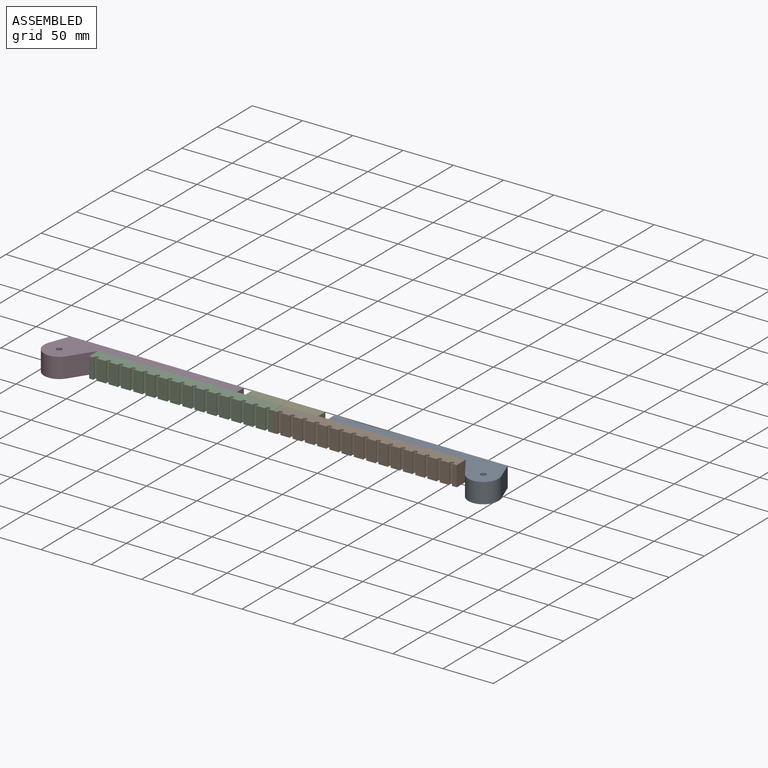
[diagram: assembled view]
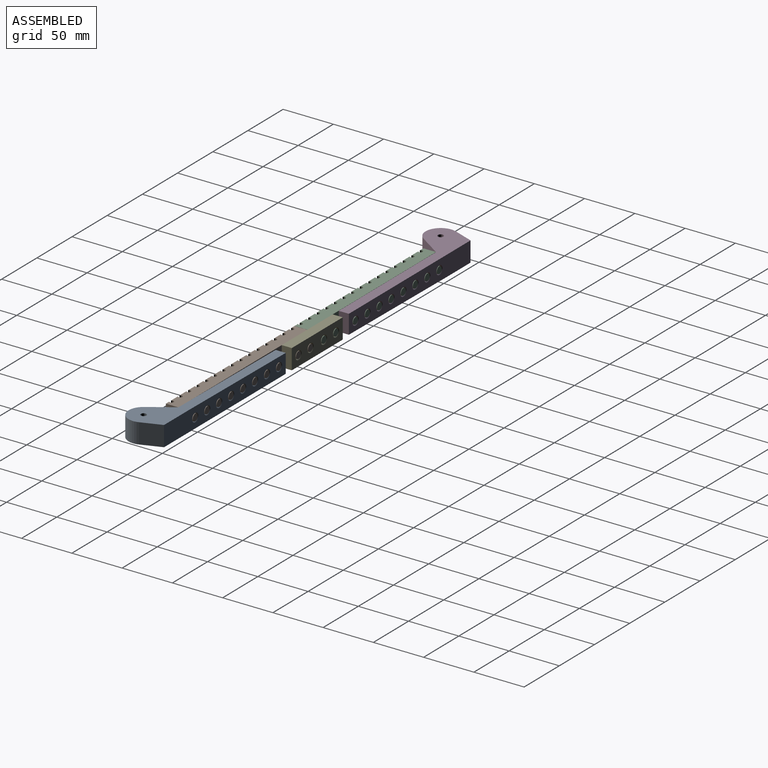
[diagram: assembled view, second angle]
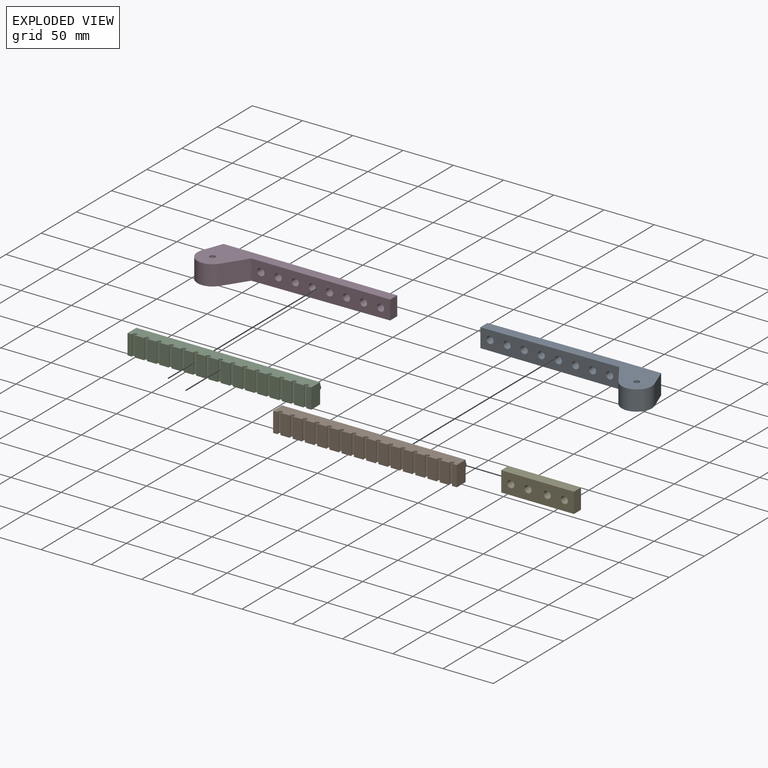
[diagram: exploded view]
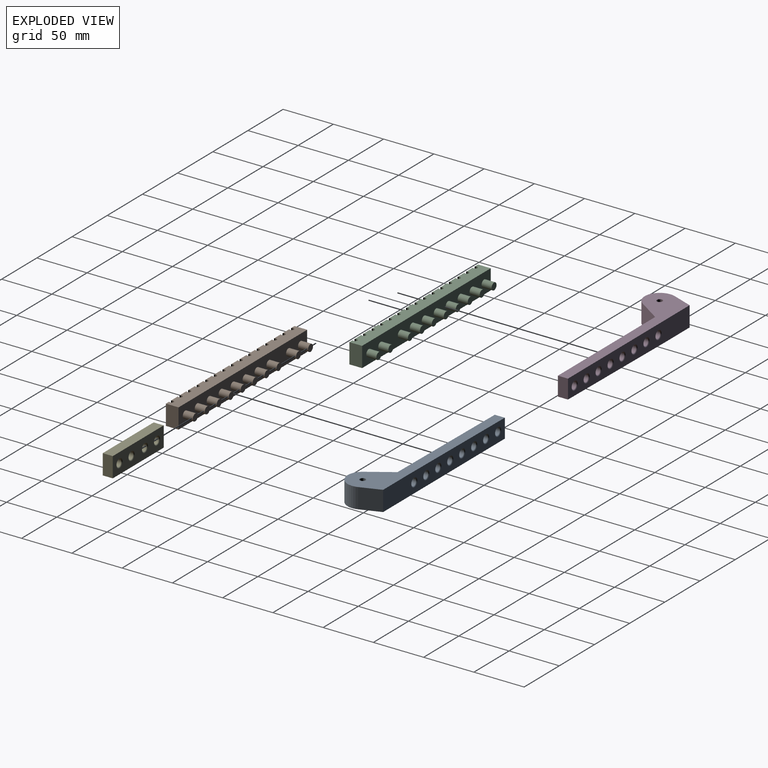
[diagram: exploded view, second angle]
ASSEMBLY  parts=5 mates=4
PART A: 26 faces, bbox 181.2x20x40 mm
  f0: plane 181.2x40mm, normal (0,-1,0), area 2627.8mm2, adj f1,f11,f12,f22,f23,f24,f25
  f1: plane 18.81x10mm, normal (1,0,0), area 188.1mm2, adj f0,f2,f11,f12
  f2: plane 138.2x10mm, normal (0.01,1,0), area 1382.1mm2, adj f1,f9,f11,f12
  f3: cylinder r=3.55mm len=9mm, axis (0,0,1), area 200.7mm2, adj f11,f16
  f4: cylinder r=3.55mm len=9mm, axis (0,0,1), area 200.7mm2, adj f11,f17
  f5: cylinder r=3.55mm len=9mm, axis (0,0,1), area 200.7mm2, adj f11,f18
  f6: cylinder r=3.55mm len=9mm, axis (0,0,1), area 200.7mm2, adj f11,f19
  f7: cylinder r=3.55mm len=9mm, axis (0,0,1), area 200.7mm2, adj f11,f20
  f8: cylinder r=3.55mm len=9mm, axis (0,0,1), area 200.7mm2, adj f11,f21
  f9: plane 43x40mm, normal (0,1,0), area 1245.8mm2, adj f2,f12,f22,f23,f24,f25
  f10: cylinder r=3.55mm len=9mm, axis (0,0,1), area 200.7mm2, adj f11,f15
  f11: plane 138.2x20mm, normal (0,0,-1), area 2365.1mm2, adj f0,f1,f2,f3,f4,f5,f6,f7
  f12: plane 172.91x20mm, normal (0,0,1), area 2855.7mm2, adj f0,f1,f2,f9,f14,f15,f16,f17
  f13: cylinder r=3.55mm len=9mm, axis (0,0,1), area 200.7mm2, adj f11,f14
  f14: torus R=4.55mm, axis (0,0,1), area 38.6mm2, adj f12,f13
  f15: torus R=4.55mm, axis (0,0,1), area 38.6mm2, adj f10,f12
  f16: torus R=4.55mm, axis (0,0,1), area 38.6mm2, adj f3,f12
  f17: torus R=4.55mm, axis (0,0,1), area 38.6mm2, adj f4,f12
  f18: torus R=4.55mm, axis (0,0,1), area 38.6mm2, adj f5,f12
  f19: torus R=4.55mm, axis (0,0,1), area 38.6mm2, adj f6,f12
  f20: torus R=4.55mm, axis (0,0,1), area 38.6mm2, adj f7,f12
  f21: torus R=4.55mm, axis (0,0,1), area 38.6mm2, adj f8,f12
  f22: plane 20x19.78mm, normal (-0.94,0,0.35), area 421.9mm2, adj f0,f9,f12,f24
  f23: plane 23.31x20mm, normal (0.83,0,-0.55), area 560mm2, adj f0,f9,f11,f24
  f24: cylinder r=15mm len=27.49mm, axis (0,1,0), area 873mm2, adj f0,f9,f22,f23
  f25: cylinder r=2.75mm len=20mm, axis (0,1,0), area 345.6mm2, adj f0,f9
PART B: 56 faces, bbox 182.8x22.6x20 mm
  f0: plane 20x4.8mm, normal (0,-1,0), area 96mm2, adj f1,f33,f34,f35
  f1: cylinder r=2mm len=20mm, axis (0,0,-1), area 199.8mm2, adj f0,f2,f34,f35
  f2: plane 20x9.8mm, normal (0,-1,0), area 196mm2, adj f1,f3,f34,f35
  f3: cylinder r=2mm len=20mm, axis (0,0,-1), area 199.8mm2, adj f2,f4,f34,f35
  f4: plane 20x9.8mm, normal (0,-1,0), area 196mm2, adj f3,f5,f34,f35
  f5: cylinder r=2mm len=20mm, axis (0,0,-1), area 199.8mm2, adj f4,f6,f34,f35
  f6: plane 20x9.8mm, normal (0,-1,0), area 196mm2, adj f5,f7,f34,f35
  f7: cylinder r=2mm len=20mm, axis (0,0,-1), area 199.8mm2, adj f6,f8,f34,f35
  f8: plane 20x9.8mm, normal (0,-1,0), area 196mm2, adj f7,f9,f34,f35
  f9: cylinder r=2mm len=20mm, axis (0,0,-1), area 199.8mm2, adj f8,f10,f34,f35
  f10: plane 20x9.8mm, normal (0,-1,0), area 196mm2, adj f9,f11,f34,f35
  f11: cylinder r=2mm len=20mm, axis (0,0,-1), area 199.8mm2, adj f10,f12,f34,f35
  f12: plane 20x9.8mm, normal (0,-1,0), area 196mm2, adj f11,f13,f34,f35
  f13: cylinder r=2mm len=20mm, axis (0,0,-1), area 199.8mm2, adj f12,f14,f34,f35
  f14: plane 20x9.8mm, normal (0,-1,0), area 196mm2, adj f13,f15,f34,f35
  f15: cylinder r=2mm len=20mm, axis (0,0,-1), area 199.8mm2, adj f14,f16,f34,f35
  f16: plane 20x9.8mm, normal (0,-1,0), area 196mm2, adj f15,f17,f34,f35
  f17: cylinder r=2mm len=20mm, axis (0,0,-1), area 199.8mm2, adj f16,f18,f34,f35
  f18: plane 20x9.8mm, normal (0,-1,0), area 196mm2, adj f17,f19,f34,f35
  f19: cylinder r=2mm len=20mm, axis (0,0,-1), area 199.8mm2, adj f18,f20,f34,f35
  f20: plane 20x9.8mm, normal (0,-1,0), area 196mm2, adj f19,f21,f34,f35
  f21: cylinder r=2mm len=20mm, axis (0,0,-1), area 199.8mm2, adj f20,f22,f34,f35
  f22: plane 20x9.8mm, normal (0,-1,0), area 196mm2, adj f21,f23,f34,f35
  f23: cylinder r=2mm len=20mm, axis (0,0,-1), area 199.8mm2, adj f22,f24,f34,f35
  f24: plane 20x9.8mm, normal (0,-1,0), area 196mm2, adj f23,f25,f34,f35
  f25: cylinder r=2mm len=20mm, axis (0,0,-1), area 199.8mm2, adj f24,f26,f34,f35
  f26: plane 20x9.8mm, normal (0,-1,0), area 196mm2, adj f25,f27,f34,f35
  f27: cylinder r=2mm len=20mm, axis (0,0,-1), area 199.8mm2, adj f26,f28,f34,f35
  f28: plane 20x9.8mm, normal (0,-1,0), area 196mm2, adj f27,f29,f34,f35
  f29: cylinder r=2mm len=20mm, axis (0,0,-1), area 199.8mm2, adj f28,f30,f34,f35
  f30: plane 20x4.8mm, normal (0,-1,0), area 96mm2, adj f29,f31,f34,f35
  f31: plane 20x12.6mm, normal (1,0,0), area 252mm2, adj f30,f32,f34,f35
  f32: plane 182.8x20mm, normal (0,1,0), area 3271.2mm2, adj f31,f33,f34,f35,f36,f38,f40,f42
  f33: plane 20x12.6mm, normal (-1,0,0), area 252mm2, adj f0,f32,f34,f35
  f34: plane 182.8x12.6mm, normal (0,0,1), area 2124.6mm2, adj f0,f1,f2,f3,f4,f5,f6,f7
  f35: plane 182.8x12.6mm, normal (0,0,-1), area 2124.6mm2, adj f0,f1,f2,f3,f4,f5,f6,f7
  f36: cylinder r=3.5mm len=10mm, axis (0,-1,0), area 219.9mm2, adj f32,f37
  f37: plane 7x7mm, normal (0,1,0), area 38.5mm2, adj f36
  f38: cylinder r=3.5mm len=10mm, axis (0,-1,0), area 219.9mm2, adj f32,f39
  f39: plane 7x7mm, normal (0,1,0), area 38.5mm2, adj f38
  f40: cylinder r=3.5mm len=10mm, axis (0,-1,0), area 219.9mm2, adj f32,f41
  f41: plane 7x7mm, normal (0,1,0), area 38.5mm2, adj f40
  f42: cylinder r=3.5mm len=10mm, axis (0,-1,0), area 219.9mm2, adj f32,f43
  f43: plane 7x7mm, normal (0,1,0), area 38.5mm2, adj f42
  f44: cylinder r=3.5mm len=10mm, axis (0,-1,0), area 219.9mm2, adj f32,f45
  f45: plane 7x7mm, normal (0,1,0), area 38.5mm2, adj f44
  f46: cylinder r=3.5mm len=10mm, axis (0,-1,0), area 219.9mm2, adj f32,f47
  f47: plane 7x7mm, normal (0,1,0), area 38.5mm2, adj f46
  f48: cylinder r=3.5mm len=10mm, axis (0,-1,0), area 219.9mm2, adj f32,f49
  f49: plane 7x7mm, normal (0,1,0), area 38.5mm2, adj f48
  f50: cylinder r=3.5mm len=10mm, axis (0,-1,0), area 219.9mm2, adj f32,f51
  f51: plane 7x7mm, normal (0,1,0), area 38.5mm2, adj f50
  f52: cylinder r=3.5mm len=10mm, axis (0,-1,0), area 219.9mm2, adj f32,f53
  f53: plane 7x7mm, normal (0,1,0), area 38.5mm2, adj f52
  f54: cylinder r=3.5mm len=10mm, axis (0,-1,0), area 219.9mm2, adj f32,f55
  f55: plane 7x7mm, normal (0,1,0), area 38.5mm2, adj f54
PART C: same geometry as B
PART D: same geometry as A
PART E: 14 faces, bbox 72.4x20x10 mm
  f0: plane 72.4x10mm, normal (0,-1,0), area 724mm2, adj f1,f6,f8,f9
  f1: plane 20x10mm, normal (1,0,0), area 200mm2, adj f0,f2,f8,f9
  f2: plane 72.4x10mm, normal (0,1,0), area 724mm2, adj f1,f6,f8,f9
  f3: cylinder r=3.55mm len=9mm, axis (0,0,-1), area 200.7mm2, adj f9,f11
  f4: cylinder r=3.55mm len=9mm, axis (0,0,-1), area 200.7mm2, adj f9,f12
  f5: cylinder r=3.55mm len=9mm, axis (0,0,-1), area 200.7mm2, adj f9,f13
  f6: plane 20x10mm, normal (-1,0,0), area 200mm2, adj f0,f2,f8,f9
  f7: cylinder r=3.55mm len=9mm, axis (0,0,-1), area 200.7mm2, adj f9,f10
  f8: plane 72.4x20mm, normal (0,0,1), area 1187.8mm2, adj f0,f1,f2,f6,f10,f11,f12,f13
  f9: plane 72.4x20mm, normal (0,0,-1), area 1289.6mm2, adj f0,f1,f2,f3,f4,f5,f6,f7
  f10: torus R=4.55mm, axis (0,0,1), area 38.6mm2, adj f7,f8
  f11: torus R=4.55mm, axis (0,0,1), area 38.6mm2, adj f3,f8
  f12: torus R=4.55mm, axis (0,0,1), area 38.6mm2, adj f4,f8
  f13: torus R=4.55mm, axis (0,0,1), area 38.6mm2, adj f5,f8
PLACE A rot(axis=(0,0.71,0.71),180deg) t=(294.92,53.18,13.87)mm
PLACE B rot(axis=(0,1,0),180deg) t=(263.61,32.18,22.15)mm
PLACE C t=(5.08,32.18,2.15)mm
PLACE D rot(axis=(-1,0,0),90deg) t=(-26.23,53.18,10.43)mm
PLACE E rot(axis=(0,0.71,0.71),180deg) t=(115.48,43.18,12.15)mm
MATE fastened C.f42 <-> E.f3  axis (0,1,0) through (107.74,53.18,12.15)mm
MATE fastened A.f10 <-> B.f54  axis (0,1,0) through (188.74,53.18,12.15)mm
MATE fastened D.f10 <-> C.f54  axis (0,1,0) through (79.94,53.18,12.15)mm
MATE fastened B.f40 <-> E.f5  axis (0,1,0) through (143.94,53.18,12.15)mm
